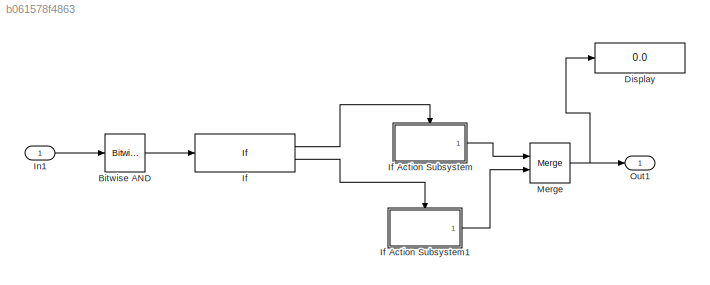
MODEL slx_b061578f4863
KIND model
CONFIG AbsTol = auto
CONFIG EnableMultiTasking = off
CONFIG FixedStep = auto
CONFIG MaxStep = auto
CONFIG MinStep = auto
CONFIG RelTol = 1e-3
CONFIG SampleTimeConstraint = Unconstrained
CONFIG SolverName = FixedStepDiscrete
CONFIG StartTime = 0.0
CONFIG StopTime = 10
BLOCK [Reference] Bitwise AND  REF=simulink/Logic and Bit
Operations/Bitwise
Operator
  Ports = [1, 1]
  SourceBlock = simulink/Logic and Bit\nOperations/Bitwise\nOperator
  SourceProductBaseCode = SL
  SourceType = Bitwise Operator
BLOCK [Display] Display
  Decimation = 1
  Ports = [1]
BLOCK [If] If
  IfExpression = u1 == 0
  Ports = [1, 2]
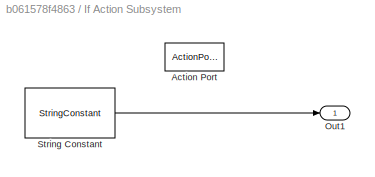
BLOCK [SubSystem] If Action Subsystem
  Ports = [0, 1, 0, 0, 0, 0, 0, 1]
  RequestExecContextInheritance = off
  TreatAsAtomicUnit = on
BLOCK [ActionPort] If Action Subsystem/Action Port
  ActionPortLabel = if(u1 == 0)
BLOCK [Outport] If Action Subsystem/Out1
BLOCK [StringConstant] If Action Subsystem/String Constant
  String = "Even"
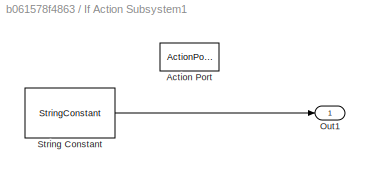
BLOCK [SubSystem] If Action Subsystem1
  Ports = [0, 1, 0, 0, 0, 0, 0, 1]
  RequestExecContextInheritance = off
  TreatAsAtomicUnit = on
BLOCK [ActionPort] If Action Subsystem1/Action Port
  ActionPortLabel = else
BLOCK [Outport] If Action Subsystem1/Out1
BLOCK [StringConstant] If Action Subsystem1/String Constant
  String = "Odd"
BLOCK [Inport] In1
  OutDataTypeStr = uint8
BLOCK [Merge] Merge
  Ports = [2, 1]
BLOCK [Outport] Out1
LINE Bitwise AND:1 -> If:1
LINE If Action Subsystem/String Constant:1 -> If Action Subsystem/Out1:1
LINE If Action Subsystem1/String Constant:1 -> If Action Subsystem1/Out1:1
LINE If Action Subsystem1:1 -> Merge:2
LINE If Action Subsystem:1 -> Merge:1
LINE If:1 -> If Action Subsystem:ifaction
LINE If:2 -> If Action Subsystem1:ifaction
LINE In1:1 -> Bitwise AND:1
NET Merge:1 -> Display:1, Out1:1
note: NET lines group one-source signal fan-out (src -> all destinations, sorted); 1:1 wires keep LINE
